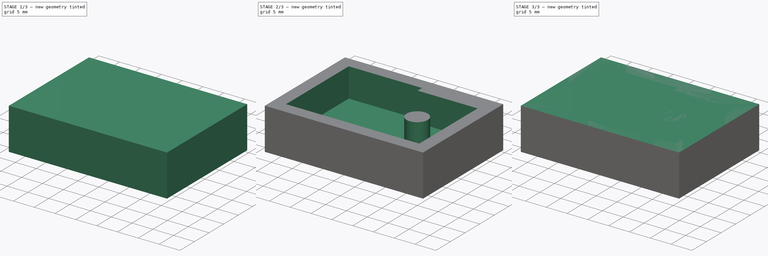
[diagram: build sequence overview — one tinted view per stage of 3, left to right]
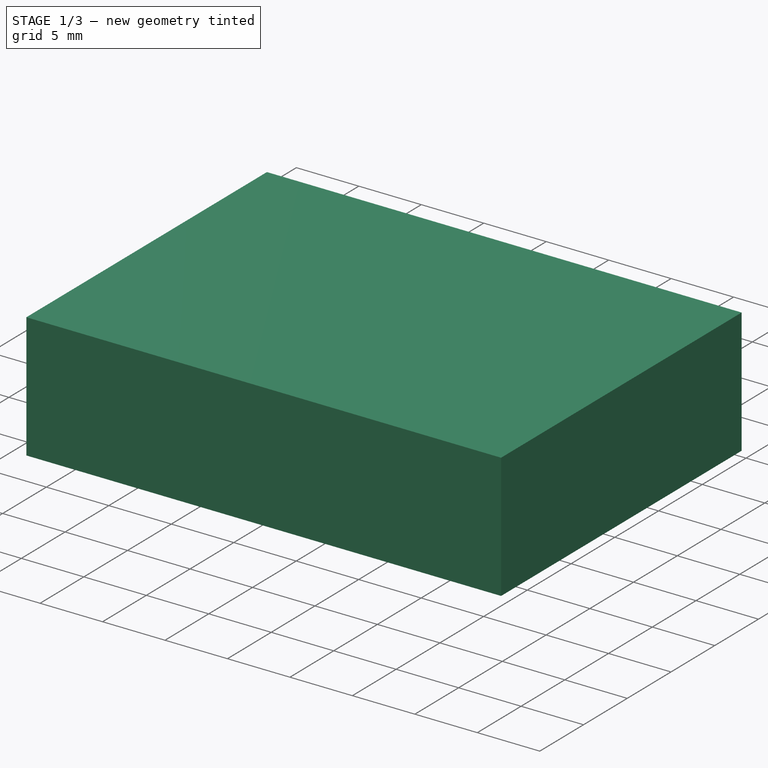
[diagram: stage 1 of 3 — iso view after this stage's code; geometry added in this stage tinted green]
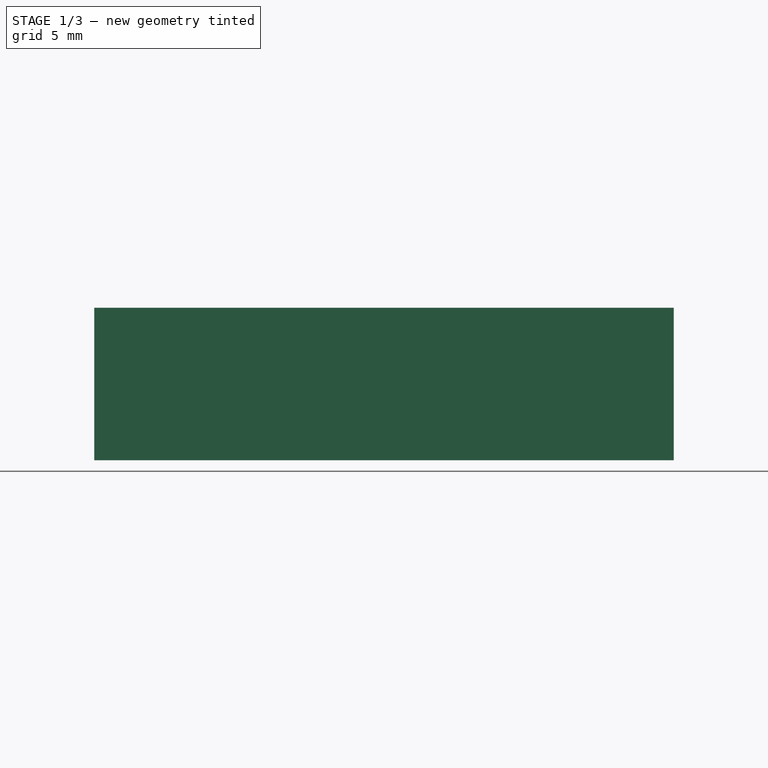
[diagram: stage 1 of 3 — front view after this stage's code; geometry added in this stage tinted green]
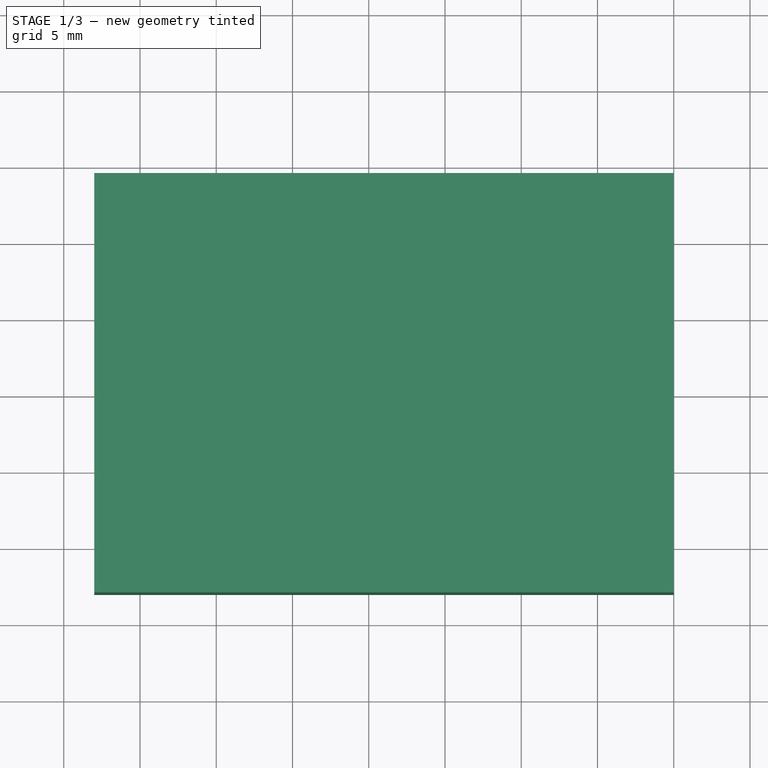
[diagram: stage 1 of 3 — top view after this stage's code; geometry added in this stage tinted green]
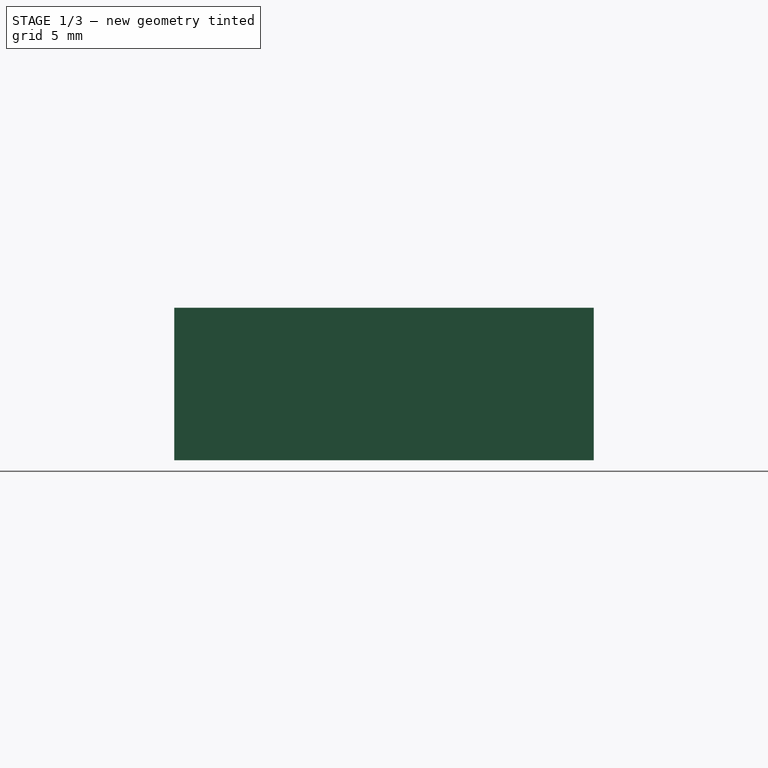
[diagram: stage 1 of 3 — right view after this stage's code; geometry added in this stage tinted green]
FCSTD DOCUMENT  (FreeCAD 0.18R16131 (Git))
Label: Limit Switch Bed - Bed Job
License: All rights reserved
LicenseURL: http://en.wikipedia.org/wiki/All_rights_reserved
objects: Path::FeaturePython×6, Sketcher::SketchObject×2, Part::FeaturePython×2, Part::Feature×1, PartDesign::ShapeBinder×1, Part::Extrusion×1, PartDesign::FeatureBase×1, PartDesign::Pocket×1, PartDesign::Body×1, App::FeaturePython×1, App::DocumentObjectGroup×1, Path::FeatureCompoundPython×1
note: 13 computed .brp shape members not serialized (recipe doc carries the construction recipe); baked Part::Feature solids carry a one-line shape summary decoded from their .brp

FEATURE [Part::Feature] Part__Feature  label="contorno"
  shape: bbox 32 x 21.5 x 2e-07 mm, 0 faces, 0 solids (baked)
FEATURE [PartDesign::ShapeBinder] ShapeBinder
  Support = -> [Part__Feature]
  TraceSupport = false
FEATURE [Sketcher::SketchObject] Sketch
  ExternalGeometry = -> [ShapeBinder]
  MapMode = 5
  Support = -> [XY_Plane]
  sketch-geometry (6):
    g0: LineSegment StartX=-3 StartY=24.5 StartZ=0 EndX=35 EndY=24.5 EndZ=0
    g1: LineSegment StartX=35 StartY=24.5 StartZ=0 EndX=35 EndY=-3 EndZ=0
    g2: LineSegment StartX=35 StartY=-3 StartZ=0 EndX=-3 EndY=-3 EndZ=0
    g3: LineSegment StartX=-3 StartY=-3 StartZ=0 EndX=-3 EndY=24.5 EndZ=0
    g4: LineSegment [constr] StartX=-3 StartY=24.5 StartZ=0 EndX=0 EndY=21.5 EndZ=0
    g5: LineSegment [constr] StartX=32 StartY=0 StartZ=0 EndX=35 EndY=-3 EndZ=0
  constraints (16):
    c: Coincident(g0,g1)
    c: Coincident(g1,g2)
    c: Coincident(g2,g3)
    c: Coincident(g3,g0)
    c: Horizontal(g0)
    c: Horizontal(g2)
    c: Vertical(g1)
    c: Vertical(g3)
    c: Coincident(g4,g0)
    c: Coincident(g4,g-3)
    c: Coincident(g5,g-4)
    c: Coincident(g5,g1)
    c: Angle(g-1,g5) = 2.35619
    c: Angle(g4,g-2) = 2.35619
    c: Equal(g4,g5)
    c: DistanceX(g2,g-1) = 3
FEATURE [Part::Extrusion] Extrude  label="BodyBed"
  Base = -> Sketch
  Dir = (0,0,1)
  DirMode = 2
  FaceMakerClass = Part::FaceMakerBullseye
  LengthFwd = 10
  LengthRev = 0
  Solid = true
  Symmetric = false
FEATURE [PartDesign::FeatureBase] BaseFeature
  BaseFeature = -> Extrude
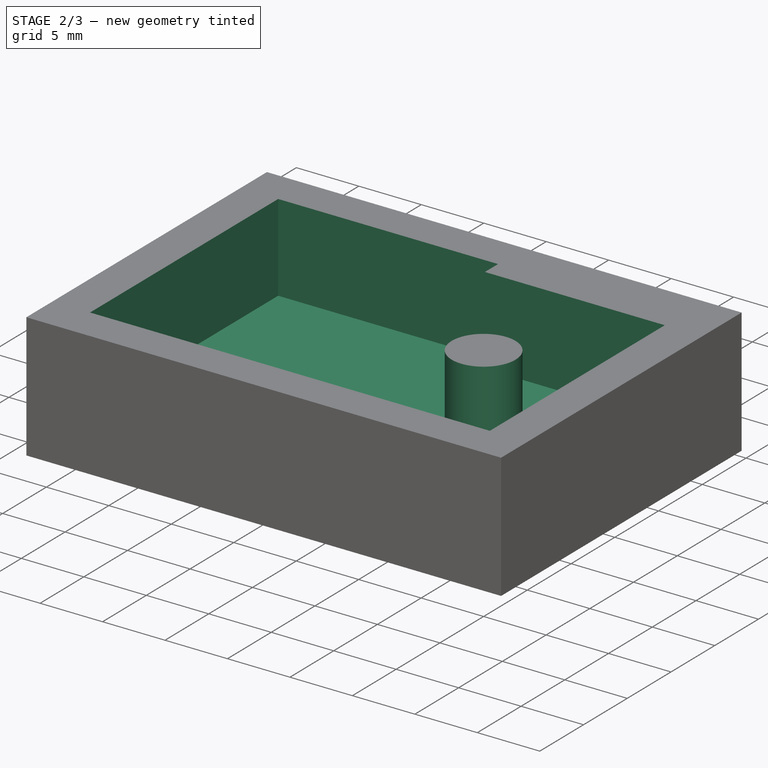
[diagram: stage 2 of 3 — iso view after this stage's code; geometry added in this stage tinted green]
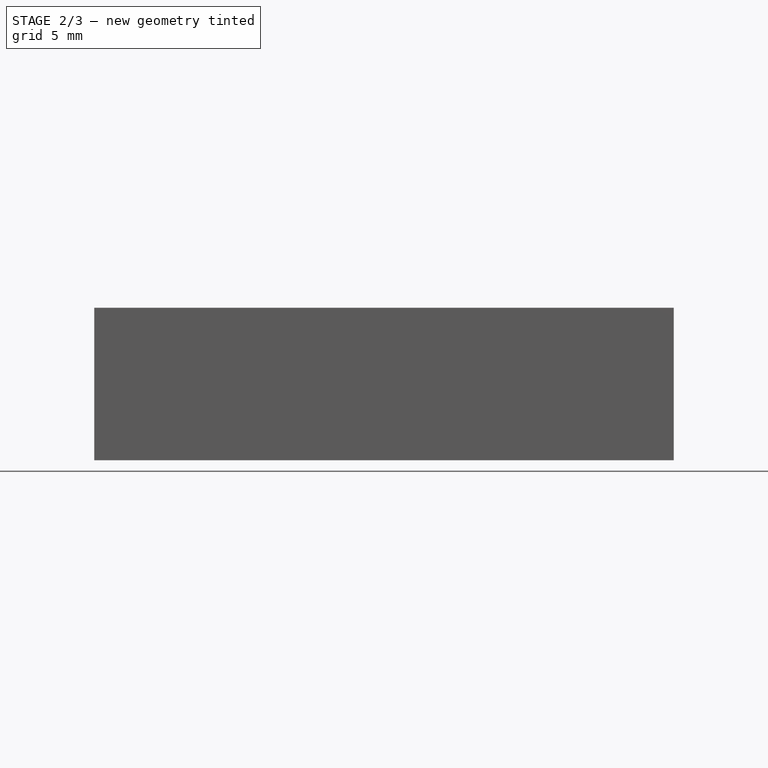
[diagram: stage 2 of 3 — front view after this stage's code; geometry added in this stage tinted green]
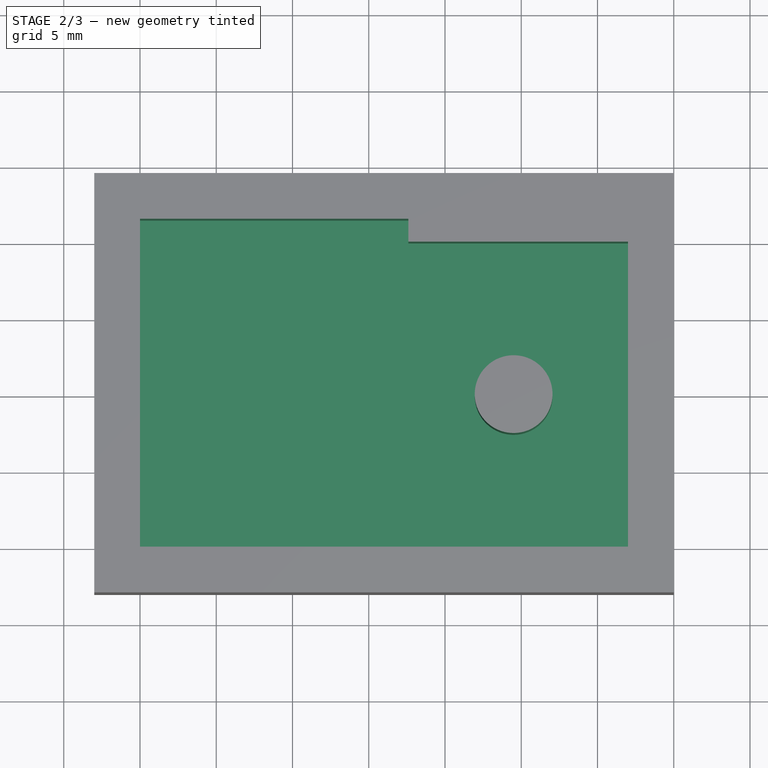
[diagram: stage 2 of 3 — top view after this stage's code; geometry added in this stage tinted green]
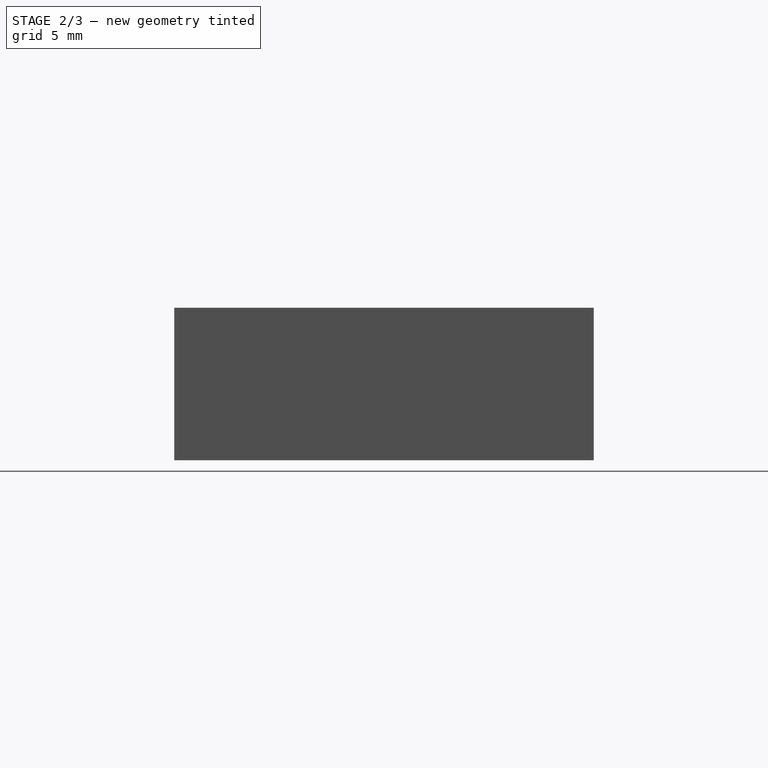
[diagram: stage 2 of 3 — right view after this stage's code; geometry added in this stage tinted green]
FEATURE [Sketcher::SketchObject] Sketch001
  ExternalGeometry = -> [ShapeBinder]
  MapMode = 5
  Placement = pos=(0,0,10) rot=(0,0,1;0rad)
  Support = -> [BaseFeature]
  sketch-geometry (7):
    g0: LineSegment StartX=0 StartY=21.5 StartZ=0 EndX=2e-16 EndY=0 EndZ=0
    g1: LineSegment StartX=2e-16 StartY=0 StartZ=0 EndX=32 EndY=0 EndZ=0
    g2: LineSegment StartX=32 StartY=0 StartZ=0 EndX=32 EndY=20 EndZ=0
    g3: LineSegment StartX=32 StartY=20 StartZ=0 EndX=17.6 EndY=20 EndZ=0
    g4: LineSegment StartX=17.6 StartY=21.5 StartZ=0 EndX=0 EndY=21.5 EndZ=0
    g5: Circle CenterX=24.5 CenterY=10 CenterZ=0 NormalX=0 NormalY=0 NormalZ=1 AngleXU=0 Radius=2.55
    g6: LineSegment StartX=17.6 StartY=20 StartZ=0 EndX=17.6 EndY=21.5 EndZ=0
  constraints (16):
    c: Coincident(g0,g1)
    c: Coincident(g1,g2)
    c: Coincident(g2,g3)
    c: Coincident(g4,g0)
    c: Coincident(g1,g-5)
    c: Coincident(g-4,g2)
    c: Coincident(g0,g-1)
    c: Coincident(g0,g-3)
    c: Coincident(g5,g-6)
    c: Equal(g5,g-6)
    c: Horizontal(g3)
    c: Coincident(g6,g3)
    c: Coincident(g6,g4)
    c: Vertical(g6)
    c: Horizontal(g4)
    c: DistanceX(g-4,g3) = 0.6
FEATURE [PartDesign::Pocket] Pocket
  BaseFeature = -> BaseFeature
  Length = 7
  Length2 = 100
  Profile = -> Sketch001
  Refine = true
  Type = 0
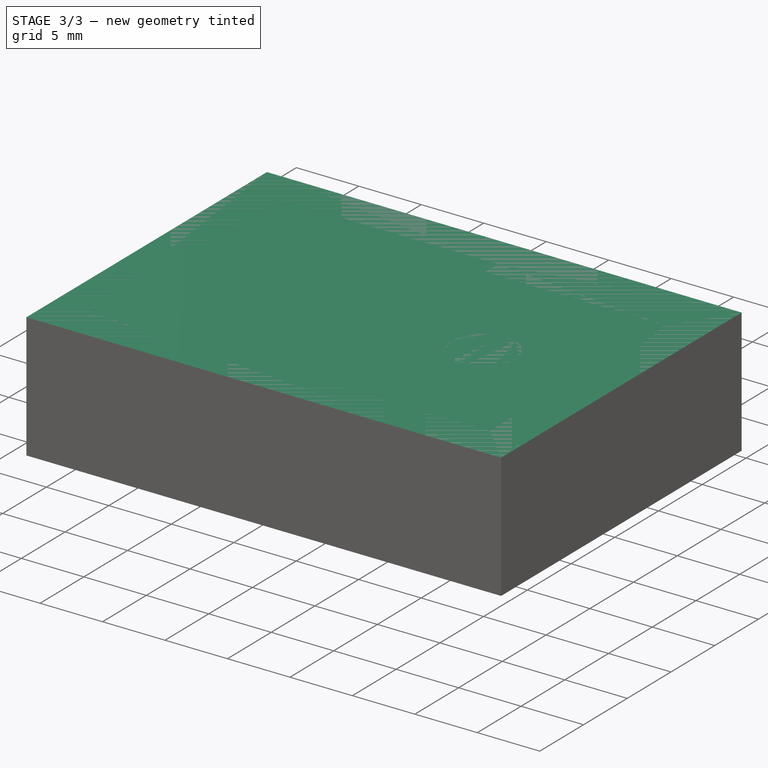
[diagram: stage 3 of 3 — iso view after this stage's code; geometry added in this stage tinted green]
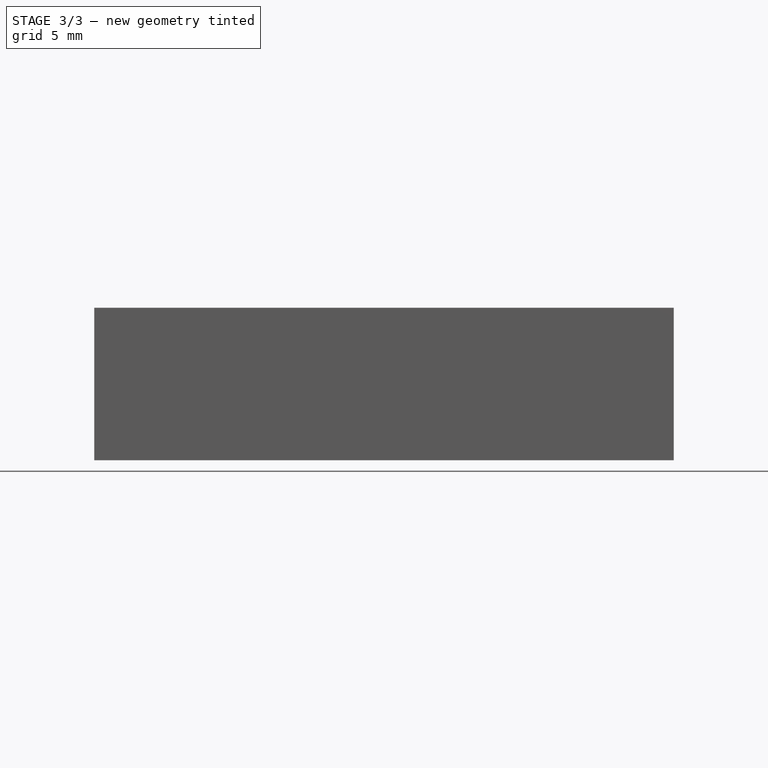
[diagram: stage 3 of 3 — front view after this stage's code; geometry added in this stage tinted green]
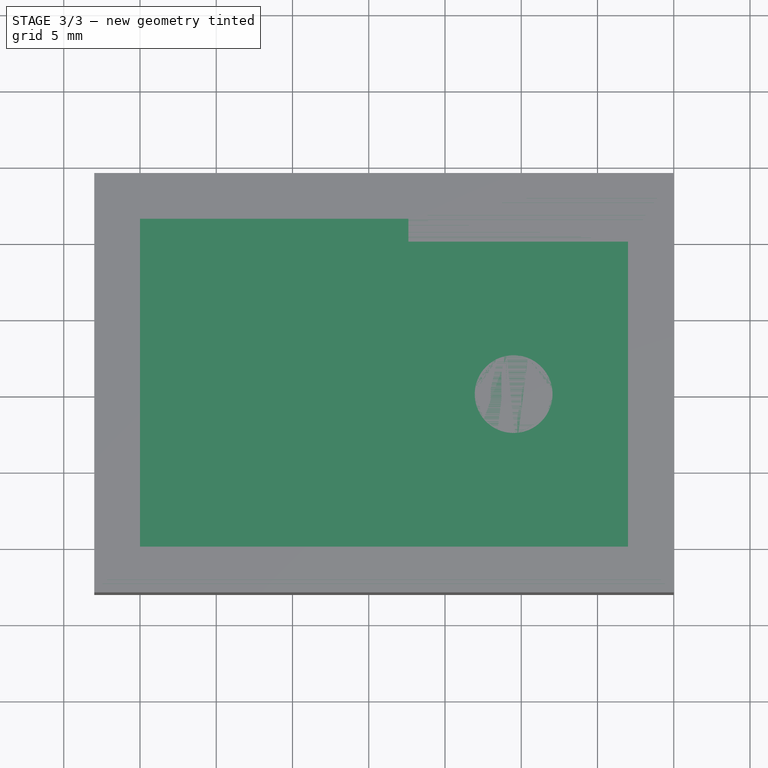
[diagram: stage 3 of 3 — top view after this stage's code; geometry added in this stage tinted green]
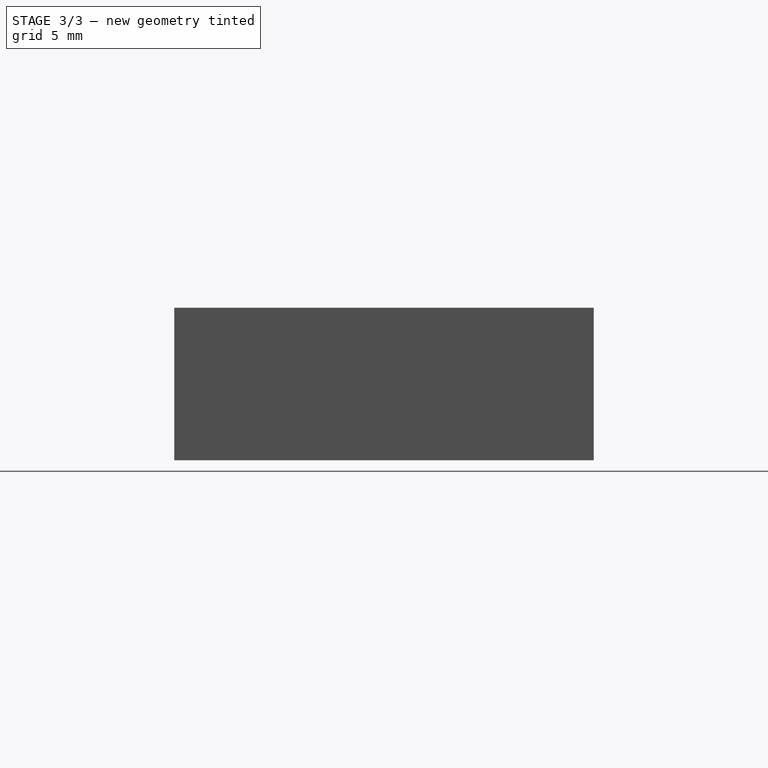
[diagram: stage 3 of 3 — right view after this stage's code; geometry added in this stage tinted green]
FEATURE [PartDesign::Body] Body  label="Bed"
  BaseFeature = -> Extrude
  Group = -> [BaseFeature,ShapeBinder,Sketch,Sketch001,Pocket]
  Origin = -> Origin
  Tip = -> Pocket
FEATURE [App::FeaturePython] SetupSheet  # Path/CAM operation (typed FeaturePython)
  ClearanceHeightExpression = OpStockZMax+SetupSheet.ClearanceHeightOffset
  ClearanceHeightOffset = 5
  FinalDepthExpression = OpFinalDepth
  HorizRapid = 0
  SafeHeightExpression = OpStockZMax+SetupSheet.SafeHeightOffset
  SafeHeightOffset = 3
  StartDepthExpression = OpStartDepth
  StepDownExpression = OpToolDiameter
  VertRapid = 0
FEATURE [Part::FeaturePython] Clone  label="Model-Bed"  # Draft clone (typed FeaturePython)
  AttacherType = Attacher::AttachEngine3D
  Fuse = false
  Objects = -> [Body]
  PathResource = Model
  Scale = (1,1,1)
FEATURE [App::DocumentObjectGroup] Model
  Group = -> [Clone]
FEATURE [Part::FeaturePython] Clone003  label="Stock-BaseFeature"  # Draft clone (typed FeaturePython)
  AttacherType = Attacher::AttachEngine3D
  Fuse = false
  Objects = -> [BaseFeature]
  PathResource = Stock
  Scale = (1,1,1)
  StockType = Unknown
FEATURE [Path::FeaturePython] T3__SingleFlute2mm  label="T3: SingleFlute2mm"  # Path/CAM operation (typed FeaturePython)
  HorizFeed = 25
  HorizRapid = 0
  SpindleDir = 0
  SpindleSpeed = 8000
  ToolNumber = 3
  VertFeed = 5
  VertRapid = 0
  expr: HorizRapid = SetupSheet.HorizRapid
  expr: VertRapid = SetupSheet.VertRapid
FEATURE [Path::FeaturePython] T4__SingleFlute1mm  label="T4: SingleFlute1mm"  # Path/CAM operation (typed FeaturePython)
  HorizFeed = 25
  HorizRapid = 0
  SpindleDir = 0
  SpindleSpeed = 8000
  ToolNumber = 4
  VertFeed = 5
  VertRapid = 0
  expr: HorizRapid = SetupSheet.HorizRapid
  expr: VertRapid = SetupSheet.VertRapid
FEATURE [Path::FeaturePython] Pocket_Shape  # Path/CAM operation (typed FeaturePython)
  Active = true
  AreaParams:
    Tolerance = 1e-07
    FitArcs = True
    Simplify = False
    CleanDistance = 0.0
    Accuracy = 0.01
    Unit = 1.0
    MinArcPoints = 4
    MaxArcPoints = 100
    ClipperScale = 10000000.0
    Fill = 0
    Coplanar = 0
    Reorient = True
    Outline = False
    Explode = False
    OpenMode = 0
    Deflection = 0.01
    SubjectFill = 0
    ClipFill = 0
    Offset = 0.0
    ExtraPass = 0
    Stepover = 0.0
    LastStepover = 0.0
    JoinType = 0
    EndType = 0
    MiterLimit = 2.0
    RoundPrecision = 0.0
    PocketMode = 2
    ToolRadius = 1.0
    PocketExtraOffset = 0.0
    PocketStepover = 1.2
    PocketLastStepover = 0.0
    FromCenter = True
    Angle = 45.0
    AngleShift = 0.0
    Shift = 0.0
    Thicken = False
    SectionCount = -1
    Stepdown = 1.0
    SectionOffset = 0.0
    SectionTolerance = 1e-06
    SectionMode = 2
    Project = False
  Base = -> [Clone]
  ClearanceHeight = 15
  CutMode = 0
  ExtraOffset = 0
  FinalDepth = 3
  FinishDepth = 0
  KeepToolDown = false
  MinTravel = false
  OffsetPattern = 1
  OpFinalDepth = 3
  OpStartDepth = 10
  OpStockZMax = 10
  OpStockZMin = 0
  OpToolDiameter = 2
  PathParams = {'orientation': 1, 'feedrate': 25.0, 'feedrate_v': 5.0, 'verbose': True, 'resume_height': 13.0, 'retraction': 15.0, 'return_end': True, 'preamble': False}
  SafeHeight = 13
  StartAt = 0
  StartDepth = 10
  StartPoint = (0,0,0)
  StepDown = 2
  StepOver = 60
  ToolController = -> T3__SingleFlute2mm
  UseOutline = false
  UseStartPoint = false
  ZigZagAngle = 45
  expr: ClearanceHeight = OpStockZMax + SetupSheet.ClearanceHeightOffset
  expr: SafeHeight = OpStockZMax + SetupSheet.SafeHeightOffset
  expr: StepDown = OpToolDiameter
  expr: FinalDepth = OpFinalDepth
  expr: StartDepth = OpStartDepth
FEATURE [Path::FeaturePython] Profile_Faces  # Path/CAM operation (typed FeaturePython)
  Active = true
  AreaParams:
    Tolerance = 1e-07
    FitArcs = True
    Simplify = False
    CleanDistance = 0.0
    Accuracy = 0.01
    Unit = 1.0
    MinArcPoints = 4
    MaxArcPoints = 100
    ClipperScale = 10000000.0
    Fill = 0
    Coplanar = 0
    Reorient = True
    Outline = False
    Explode = False
    OpenMode = 0
    Deflection = 0.01
    SubjectFill = 0
    ClipFill = 0
    Offset = -0.95
    ExtraPass = 0
    Stepover = 0.0
    LastStepover = 0.0
    JoinType = 0
    EndType = 0
    MiterLimit = 2.0
    RoundPrecision = 0.0
    PocketMode = 0
    ToolRadius = 1.0
    PocketExtraOffset = 0.0
    PocketStepover = 0.0
    PocketLastStepover = 0.0
    FromCenter = False
    Angle = 45.0
    AngleShift = 0.0
    Shift = 0.0
    Thicken = False
    SectionCount = -1
    Stepdown = 1.0
    SectionOffset = 0.0
    SectionTolerance = 1e-06
    SectionMode = 2
    Project = False
  Base = -> [Clone]
  ClearanceHeight = 15
  Direction = 0
  FinalDepth = 3
  JoinType = 0
  MiterLimit = 0.1
  OffsetExtra = -0.05
  OpFinalDepth = 3
  OpStartDepth = 10
  OpStockZMax = 10
  OpStockZMin = 0
  OpToolDiameter = 2
  PathParams = {'orientation': 1, 'feedrate': 25.0, 'feedrate_v': 5.0, 'verbose': True, 'resume_height': 13.0, 'retraction': 15.0, 'return_end': True, 'preamble': False}
  SafeHeight = 13
  Side = 1
  StartDepth = 10
  StartPoint = (0,0,0)
  StepDown = 2
  ToolController = -> T3__SingleFlute2mm
  UseComp = true
  UseStartPoint = false
  processCircles = true
  processHoles = false
  processPerimeter = true
  expr: ClearanceHeight = OpStockZMax + SetupSheet.ClearanceHeightOffset
  expr: SafeHeight = OpStockZMax + SetupSheet.SafeHeightOffset
  expr: StepDown = OpToolDiameter
  expr: FinalDepth = OpFinalDepth
  expr: StartDepth = OpStartDepth
FEATURE [Path::FeaturePython] DogboneDressup  # Path/CAM operation (typed FeaturePython)
  Base = -> Pocket_Shape
  BoneBlacklist = [1,6,7,8,9,10,11,12,13,14,15,16,17,18,19,20,21,22,23,24,25,26,27,28,29,30,31,32,33,34,35,36,37,38,39,40,41,42,43,44,45,46,47,48,49,50,51,52,53,54,55,56,61,62,63,64,65,66,67,68,69,70,71,72,73,74,75,76,+42 more]
  Custom = 0
  Incision = 0
  Side = 1
  Style = 0
FEATURE [Path::FeatureCompoundPython] Operations  # Path/CAM operation (typed FeaturePython)
  Group = -> [DogboneDressup,Profile_Faces]
  UsePlacements = false
FEATURE [Path::FeaturePython] Job  # Path/CAM operation (typed FeaturePython)
  GeometryTolerance = 0.01
  Model = -> Model
  Operations = -> Operations
  PostProcessor = 2
  PostProcessorOutputFile = <userpath>/github/Limit Switch Bed/LSB-Bed.gcode
  SetupSheet = -> SetupSheet
  Stock = -> Clone003
  ToolController = -> [T3__SingleFlute2mm,T4__SingleFlute1mm]
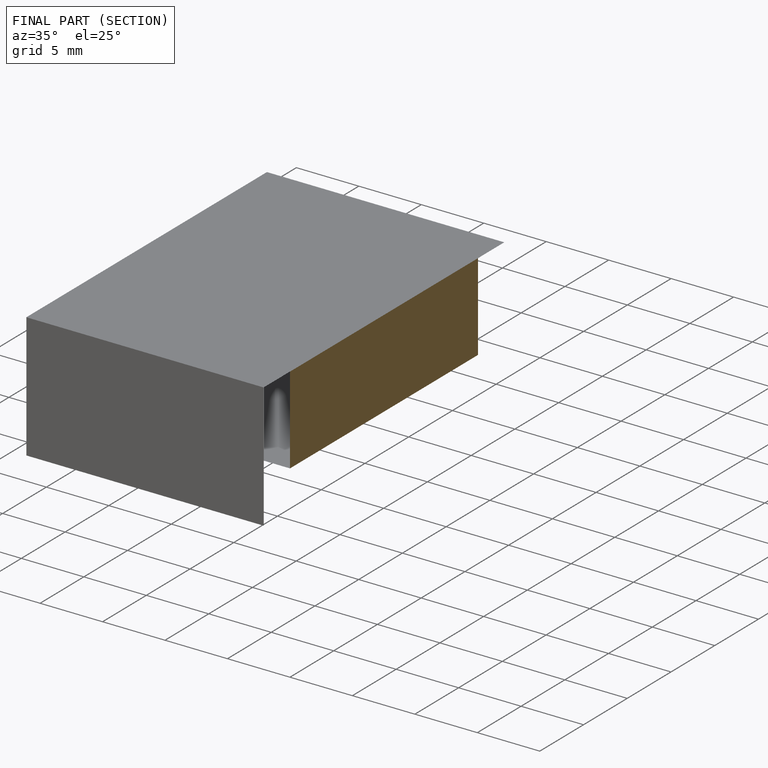
[diagram: finished part — half-section view (interior)]
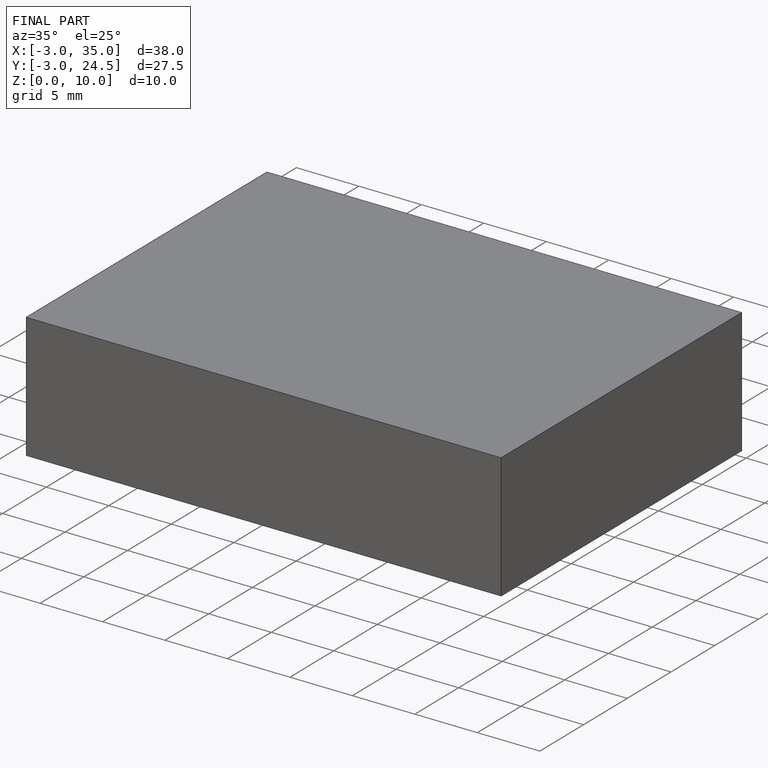
[diagram: finished part — iso view with bounding-box wireframe]
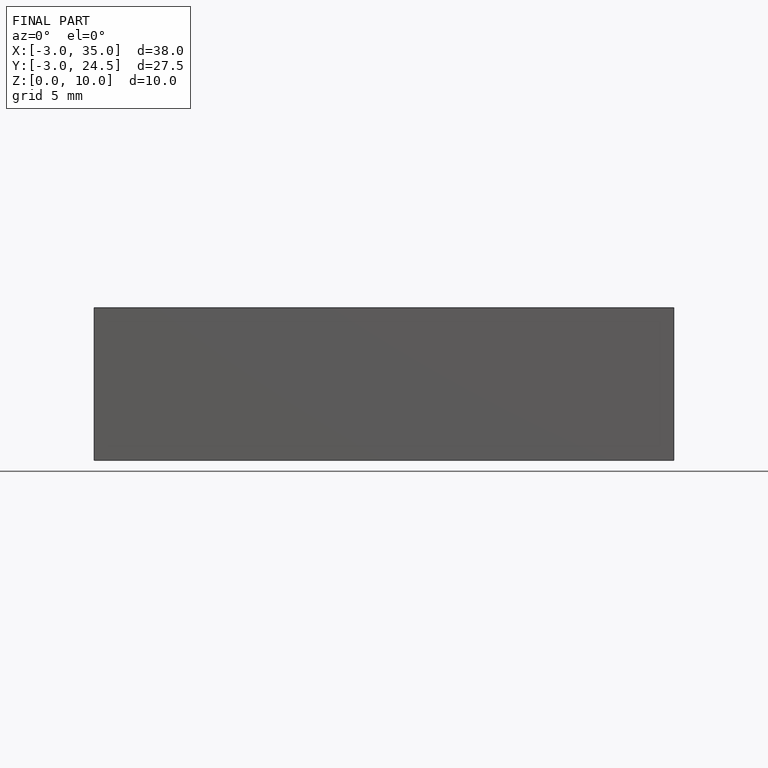
[diagram: finished part — front view with bounding-box wireframe]
